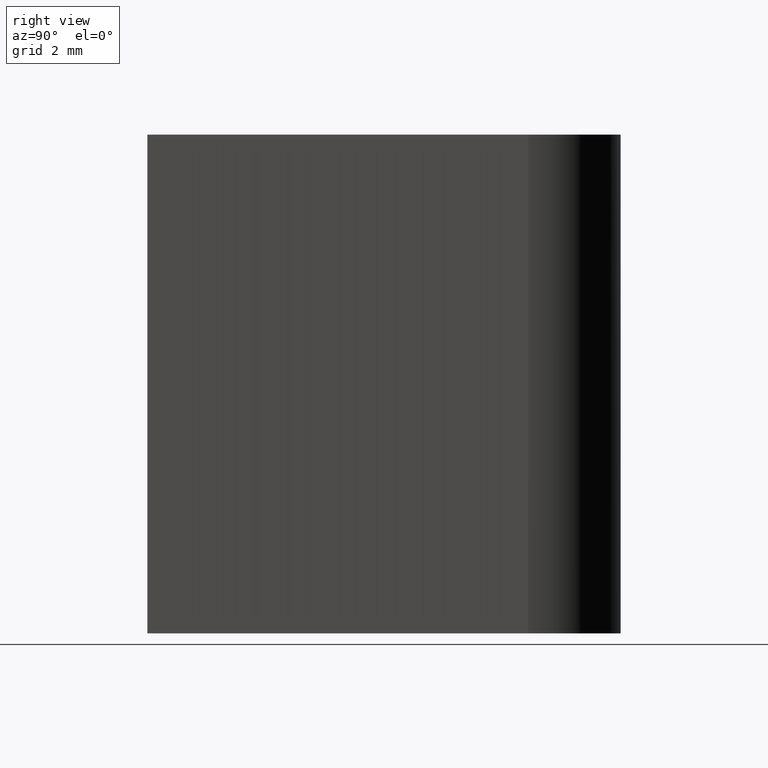
[diagram: clean part render]
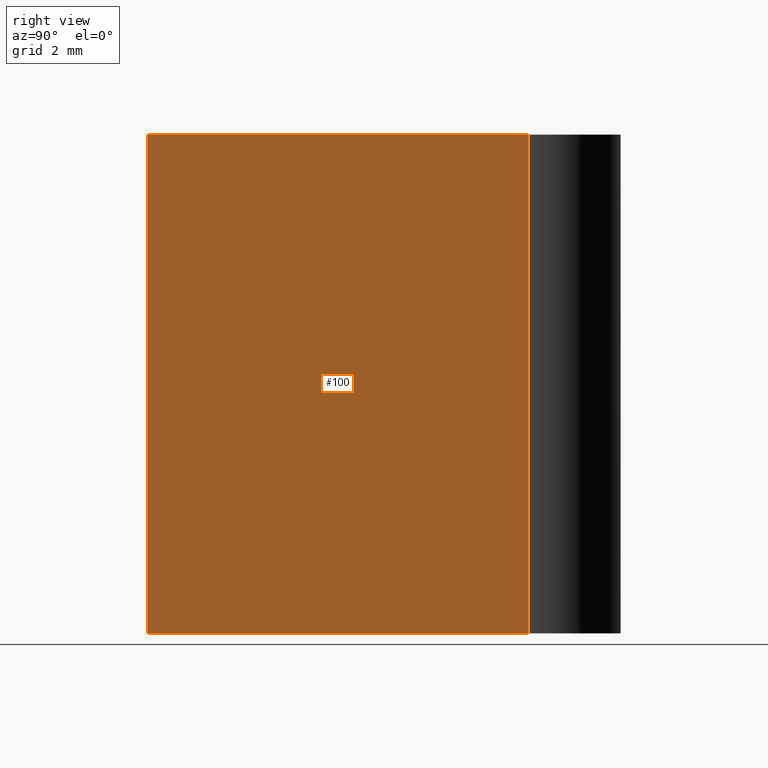
[diagram: same view with one face highlighted and labeled with its STEP entity id]
A machine part, right view. The second image highlights one B-rep face of the part: STEP entity #100.
In plain terms, the highlighted planar face has unit normal (0.9978, 0.0659, 0).
Its self-contained STEP definition (entity closure, byte-faithful):
#19=FACE_OUTER_BOUND('',#25,.T.);
#25=EDGE_LOOP('',(#71,#72,#73,#74));
#31=LINE('',#166,#41);
#32=LINE('',#168,#42);
#33=LINE('',#170,#43);
#34=LINE('',#171,#44);
#41=VECTOR('',#138,10.);
#42=VECTOR('',#139,10.);
#43=VECTOR('',#140,10.);
#44=VECTOR('',#141,10.);
#51=VERTEX_POINT('',#164);
#52=VERTEX_POINT('',#165);
#53=VERTEX_POINT('',#167);
#54=VERTEX_POINT('',#169);
#59=EDGE_CURVE('',#51,#52,#31,.T.);
#60=EDGE_CURVE('',#53,#52,#32,.T.);
#61=EDGE_CURVE('',#53,#54,#33,.T.);
#62=EDGE_CURVE('',#54,#51,#34,.T.);
#71=ORIENTED_EDGE('',*,*,#59,.T.);
#72=ORIENTED_EDGE('',*,*,#60,.F.);
#73=ORIENTED_EDGE('',*,*,#61,.T.);
#74=ORIENTED_EDGE('',*,*,#62,.T.);
#95=PLANE('',#126);
#100=ADVANCED_FACE('',(#19),#95,.T.);
#126=AXIS2_PLACEMENT_3D('',#163,#136,#137);
#136=DIRECTION('center_axis',(0.997823512446701,0.0659411708155671,0.));
#137=DIRECTION('ref_axis',(0.,0.,-1.));
#138=DIRECTION('',(0.0659411708155671,-0.997823512446701,0.));
#139=DIRECTION('',(0.,0.,1.));
#140=DIRECTION('',(-0.0659411708155671,0.997823512446701,0.));
#141=DIRECTION('',(0.,0.,1.));
#163=CARTESIAN_POINT('Origin',(1.9956470248934,0.131882341631134,0.));
#164=CARTESIAN_POINT('',(1.9956470248934,0.131882341631134,5.));
#165=CARTESIAN_POINT('',(2.5,-7.5,5.));
#166=CARTESIAN_POINT('',(2.5,-7.5,5.));
#167=CARTESIAN_POINT('',(2.5,-7.5,-5.));
#168=CARTESIAN_POINT('',(2.5,-7.5,0.));
#169=CARTESIAN_POINT('',(1.9956470248934,0.131882341631134,-5.));
#170=CARTESIAN_POINT('',(2.5,-7.5,-5.));
#171=CARTESIAN_POINT('',(1.9956470248934,0.131882341631134,0.));